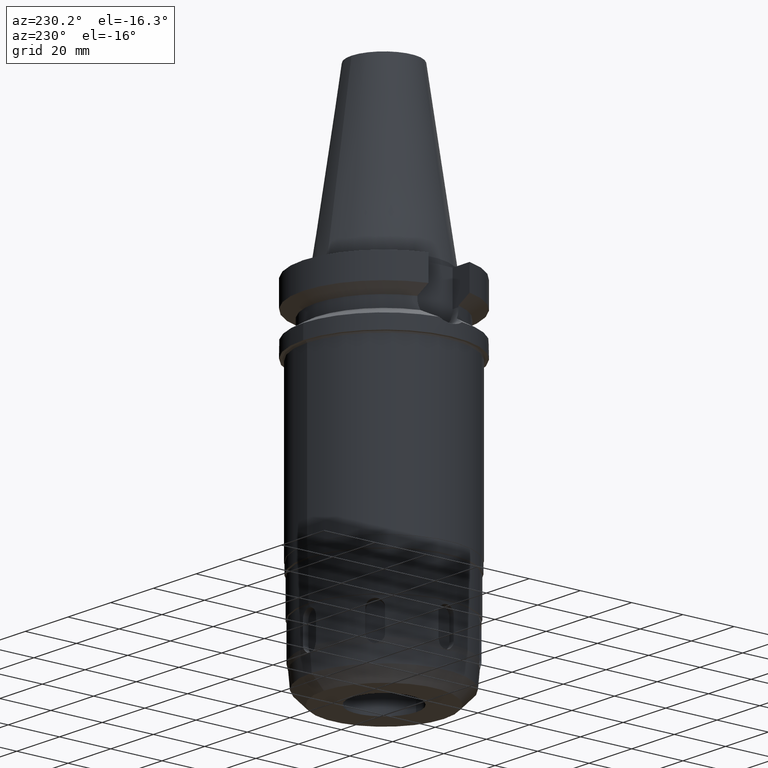
[diagram: clean part render]
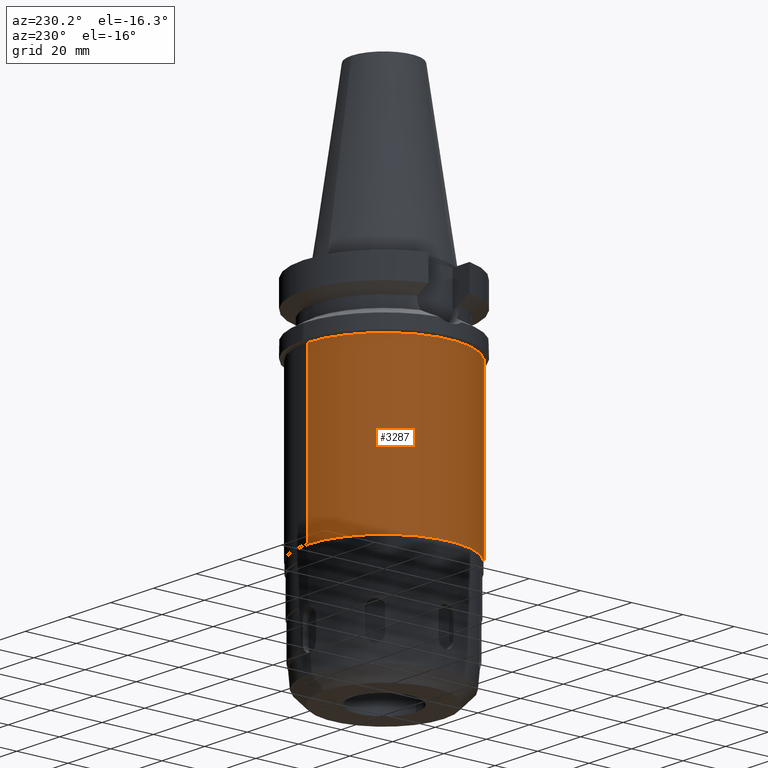
[diagram: same view with one face highlighted and labeled with its STEP entity id]
A machine part, auxiliary view. The second image highlights one B-rep face of the part: STEP entity #3287.
In plain terms, the highlighted cylindrical surface (partial cylindrical patch) has radius 30 mm, axis along (0, 0, -1).
Its self-contained STEP definition (entity closure, byte-faithful):
#665=CARTESIAN_POINT('',(0.E0,0.E0,-2.75E1));
#666=DIRECTION('',(0.E0,0.E0,-1.E0));
#667=DIRECTION('',(0.E0,-1.E0,0.E0));
#668=AXIS2_PLACEMENT_3D('',#665,#666,#667);
#688=DIRECTION('',(0.E0,0.E0,-1.E0));
#689=VECTOR('',#688,6.3E1);
#690=CARTESIAN_POINT('',(0.E0,3.E1,-2.75E1));
#691=LINE('',#690,#689);
#695=DIRECTION('',(0.E0,0.E0,-1.E0));
#696=VECTOR('',#695,6.3E1);
#697=CARTESIAN_POINT('',(0.E0,-3.E1,-2.75E1));
#698=LINE('',#697,#696);
#710=CARTESIAN_POINT('',(0.E0,2.148275415064E-14,-9.05E1));
#711=DIRECTION('',(0.E0,0.E0,1.E0));
#712=DIRECTION('',(0.E0,1.E0,0.E0));
#713=AXIS2_PLACEMENT_3D('',#710,#711,#712);
#2626=CARTESIAN_POINT('',(0.E0,-3.E1,-9.05E1));
#2627=CARTESIAN_POINT('',(0.E0,3.E1,-9.05E1));
#2628=VERTEX_POINT('',#2626);
#2629=VERTEX_POINT('',#2627);
#2630=CARTESIAN_POINT('',(0.E0,3.E1,-2.75E1));
#2631=VERTEX_POINT('',#2630);
#2632=CARTESIAN_POINT('',(0.E0,-3.E1,-2.75E1));
#2633=VERTEX_POINT('',#2632);
#3275=CARTESIAN_POINT('',(0.E0,2.148275415064E-14,7.542E1));
#3276=DIRECTION('',(0.E0,0.E0,-1.E0));
#3277=DIRECTION('',(0.E0,-1.E0,0.E0));
#3278=AXIS2_PLACEMENT_3D('',#3275,#3276,#3277);
#3279=CYLINDRICAL_SURFACE('',#3278,3.E1);
#3280=ORIENTED_EDGE('',*,*,#3265,.F.);
#3281=ORIENTED_EDGE('',*,*,#3242,.F.);
#3282=ORIENTED_EDGE('',*,*,#3269,.T.);
#3284=ORIENTED_EDGE('',*,*,#3283,.F.);
#3285=EDGE_LOOP('',(#3280,#3281,#3282,#3284));
#3286=FACE_OUTER_BOUND('',#3285,.F.);
#669=CIRCLE('',#668,3.E1);
#714=CIRCLE('',#713,3.E1);
#3242=EDGE_CURVE('',#2633,#2631,#669,.T.);
#3265=EDGE_CURVE('',#2631,#2629,#691,.T.);
#3269=EDGE_CURVE('',#2633,#2628,#698,.T.);
#3283=EDGE_CURVE('',#2629,#2628,#714,.T.);
#3287=ADVANCED_FACE('',(#3286),#3279,.T.);